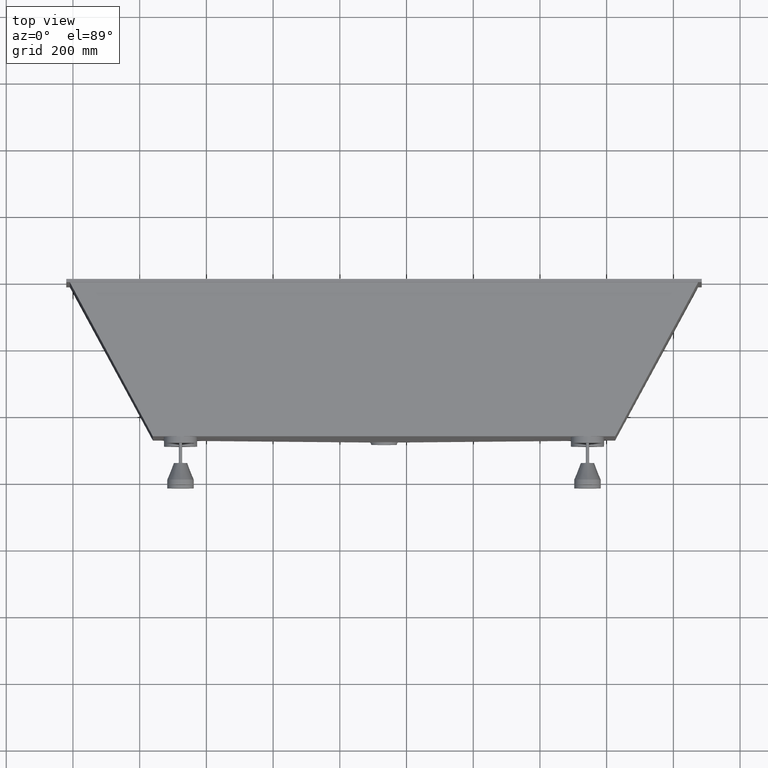
[diagram: clean part render]
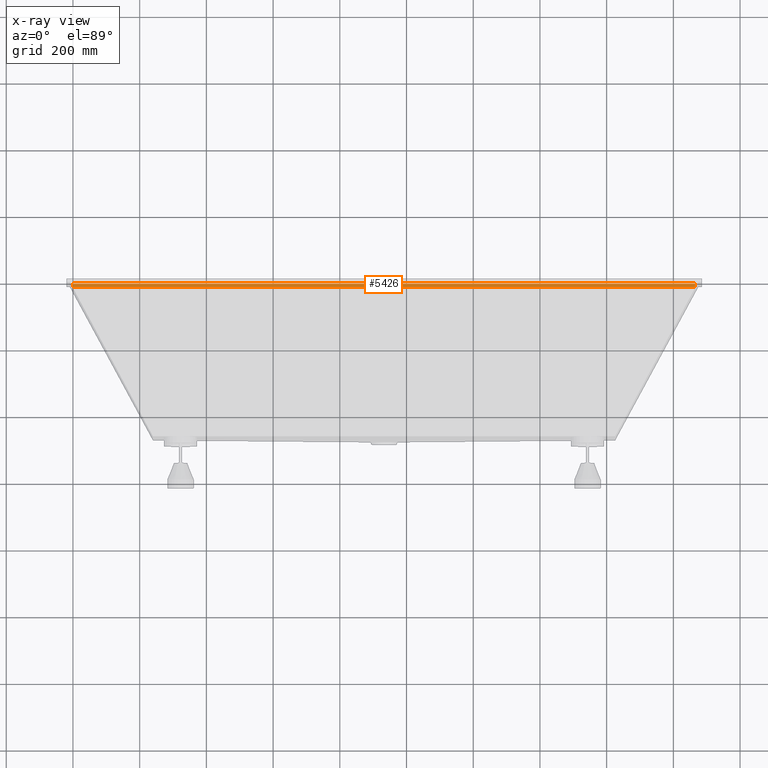
[diagram: x-ray — body ghosted, one internal face saturated and labeled with its STEP entity id]
A machine part, top view, then the same camera in x-ray: the body is ghosted and one INTERNAL B-rep face — a face not visible from any outside direction — is saturated and labeled: STEP entity #5426.
In plain terms, the highlighted planar face has unit normal (0, 0, -1).
Its self-contained STEP definition (entity closure, byte-faithful):
#124 = DIRECTION ( 'NONE',  ( -1.000000000000000000, 0.0000000000000000000, -0.0000000000000000000 ) ) ;
#571 = VERTEX_POINT ( 'NONE', #4034 ) ;
#613 = ORIENTED_EDGE ( 'NONE', *, *, #7694, .F. ) ;
#777 = DIRECTION ( 'NONE',  ( 0.0000000000000000000, 0.0000000000000000000, -1.000000000000000000 ) ) ;
#798 = PLANE ( 'NONE',  #8505 ) ;
#1031 = LINE ( 'NONE', #6135, #2714 ) ;
#1940 = VECTOR ( 'NONE', #2315, 1000.000000000000000 ) ;
#1996 = DIRECTION ( 'NONE',  ( 0.0000000000000000000, 1.000000000000000000, 0.0000000000000000000 ) ) ;
#2042 = VECTOR ( 'NONE', #1996, 1000.000000000000000 ) ;
#2087 = ORIENTED_EDGE ( 'NONE', *, *, #3165, .F. ) ;
#2095 = EDGE_CURVE ( 'NONE', #571, #6246, #3599, .T. ) ;
#2315 = DIRECTION ( 'NONE',  ( -1.000000000000000000, -0.0000000000000000000, -0.0000000000000000000 ) ) ;
#2341 = CARTESIAN_POINT ( 'NONE',  ( 9.395963528939905700E-015, -10.00000000000000000, -855.0000000000000000 ) ) ;
#2423 = CARTESIAN_POINT ( 'NONE',  ( 9.395963528939905700E-015, -10.00000000000000000, -855.0000000000000000 ) ) ;
#2714 = VECTOR ( 'NONE', #6166, 1000.000000000000000 ) ;
#2941 = EDGE_LOOP ( 'NONE', ( #5096, #613, #2087, #3100 ) ) ;
#3100 = ORIENTED_EDGE ( 'NONE', *, *, #2095, .T. ) ;
#3165 = EDGE_CURVE ( 'NONE', #571, #3189, #3704, .T. ) ;
#3189 = VERTEX_POINT ( 'NONE', #2341 ) ;
#3376 = CARTESIAN_POINT ( 'NONE',  ( 1865.000000000000200, -10.00000000000000000, -855.0000000000000000 ) ) ;
#3599 = LINE ( 'NONE', #3376, #2042 ) ;
#3704 = LINE ( 'NONE', #2423, #1940 ) ;
#4034 = CARTESIAN_POINT ( 'NONE',  ( 1865.000000000000200, -10.00000000000000000, -855.0000000000000000 ) ) ;
#4182 = VERTEX_POINT ( 'NONE', #7709 ) ;
#4725 = CARTESIAN_POINT ( 'NONE',  ( 9.395963528939905700E-015, -10.00000000000000000, -855.0000000000000000 ) ) ;
#4744 = VECTOR ( 'NONE', #7961, 1000.000000000000000 ) ;
#5096 = ORIENTED_EDGE ( 'NONE', *, *, #6063, .T. ) ;
#5426 = ADVANCED_FACE ( 'NONE', ( #5866 ), #798, .F. ) ;
#5866 = FACE_OUTER_BOUND ( 'NONE', #2941, .T. ) ;
#6063 = EDGE_CURVE ( 'NONE', #6246, #4182, #6361, .T. ) ;
#6135 = CARTESIAN_POINT ( 'NONE',  ( 9.395963528939905700E-015, -10.00000000000000000, -855.0000000000000000 ) ) ;
#6166 = DIRECTION ( 'NONE',  ( 0.0000000000000000000, 1.000000000000000000, 0.0000000000000000000 ) ) ;
#6246 = VERTEX_POINT ( 'NONE', #7208 ) ;
#6361 = LINE ( 'NONE', #7984, #4744 ) ;
#7208 = CARTESIAN_POINT ( 'NONE',  ( 1865.000000000000200, 0.0000000000000000000, -855.0000000000000000 ) ) ;
#7694 = EDGE_CURVE ( 'NONE', #3189, #4182, #1031, .T. ) ;
#7709 = CARTESIAN_POINT ( 'NONE',  ( 9.395963528939905700E-015, 0.0000000000000000000, -855.0000000000000000 ) ) ;
#7961 = DIRECTION ( 'NONE',  ( -1.000000000000000000, -0.0000000000000000000, -0.0000000000000000000 ) ) ;
#7984 = CARTESIAN_POINT ( 'NONE',  ( 9.395963528939905700E-015, 0.0000000000000000000, -855.0000000000000000 ) ) ;
#8505 = AXIS2_PLACEMENT_3D ( 'NONE', #4725, #777, #124 ) ;